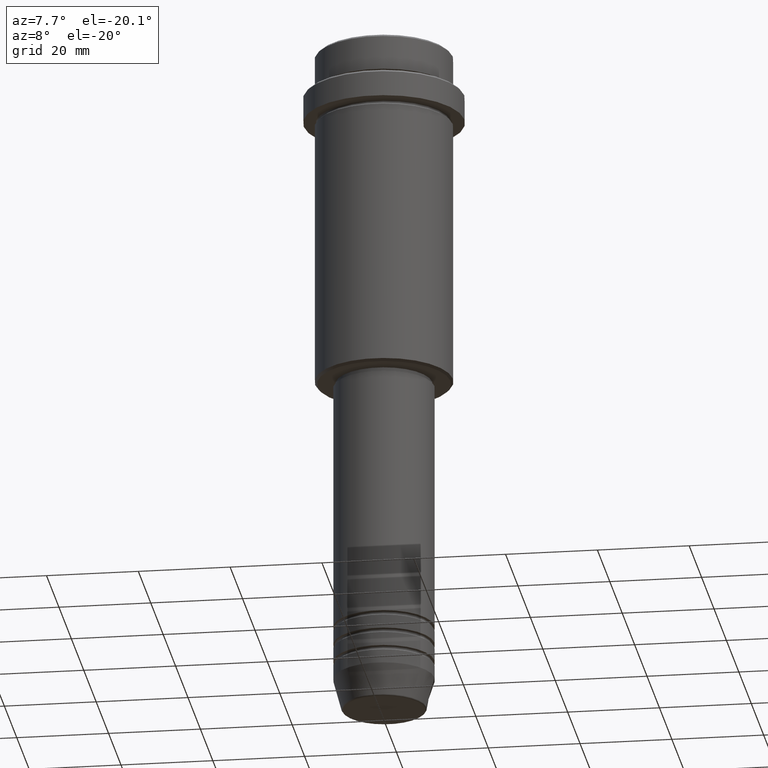
[diagram: clean part render]
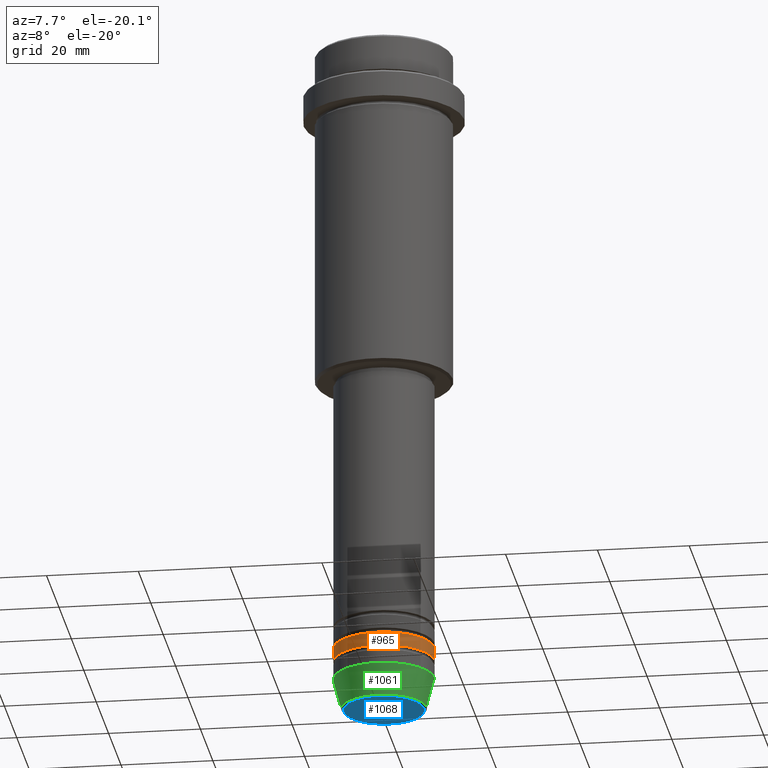
[diagram: same view with three faces highlighted in distinct colors, each labeled with its STEP entity id]
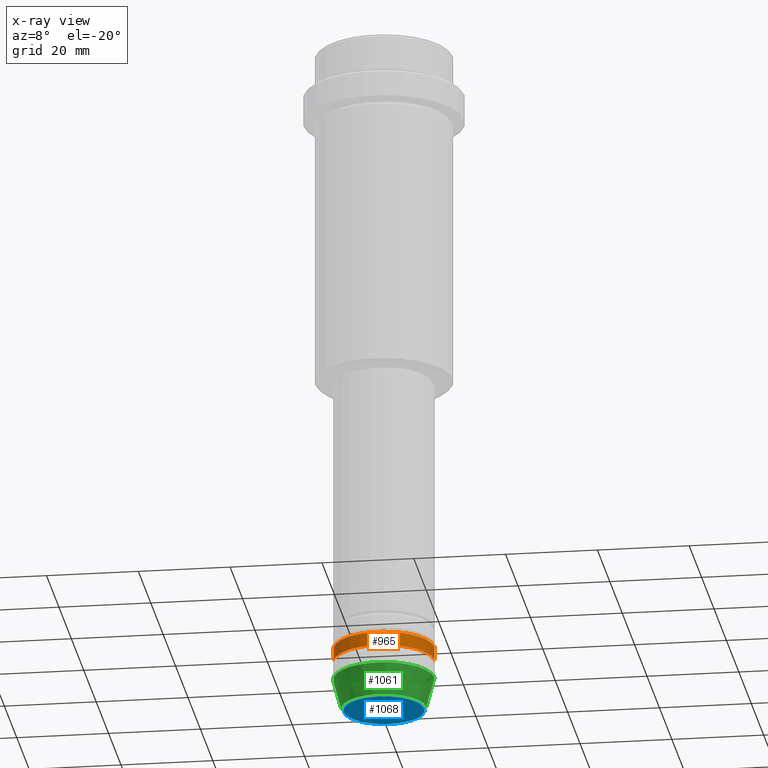
[diagram: x-ray of the same camera — body ghosted, the three highlighted faces saturated]
A machine part, auxiliary view with three faces highlighted in distinct colors.
The next image is the same camera in x-ray (body ghosted, the three faces saturated) — at least one of them is partly hidden behind the body in this view.
Their STEP definitions:

[orange] entity #965 — the highlighted cylindrical surface (partial cylindrical patch) has radius 11 mm, axis along (-0, -0, 1).
#19 = CYLINDRICAL_SURFACE ( 'NONE', #797, 11.00000000000000000 ) ;
#41 = DIRECTION ( 'NONE',  ( -0.000000000000000000, -0.000000000000000000, 1.000000000000000000 ) ) ;
#92 = VERTEX_POINT ( 'NONE', #424 ) ;
#156 = DIRECTION ( 'NONE',  ( -0.000000000000000000, -0.000000000000000000, 1.000000000000000000 ) ) ;
#170 = ORIENTED_EDGE ( 'NONE', *, *, #236, .T. ) ;
#195 = CARTESIAN_POINT ( 'NONE',  ( -11.00000000000000000, 1.347111479062088405E-15, 0.000000000000000000 ) ) ;
#236 = EDGE_CURVE ( 'NONE', #389, #657, #1000, .T. ) ;
#347 = EDGE_CURVE ( 'NONE', #92, #1059, #954, .T. ) ;
#359 = CARTESIAN_POINT ( 'NONE',  ( 0.000000000000000000, 0.000000000000000000, -138.9999999999999147 ) ) ;
#380 = ORIENTED_EDGE ( 'NONE', *, *, #347, .F. ) ;
#389 = VERTEX_POINT ( 'NONE', #841 ) ;
#424 = CARTESIAN_POINT ( 'NONE',  ( -11.00000000000000000, 1.347111479062088405E-15, -138.9999999999999147 ) ) ;
#456 = CARTESIAN_POINT ( 'NONE',  ( 0.000000000000000000, 0.000000000000000000, -135.9999999999998863 ) ) ;
#587 = VECTOR ( 'NONE', #41, 1000.000000000000000 ) ;
#657 = VERTEX_POINT ( 'NONE', #934 ) ;
#694 = DIRECTION ( 'NONE',  ( 1.000000000000000000, 0.000000000000000000, 0.000000000000000000 ) ) ;
#712 = EDGE_CURVE ( 'NONE', #1059, #657, #1288, .T. ) ;
#714 = ORIENTED_EDGE ( 'NONE', *, *, #712, .F. ) ;
#785 = CARTESIAN_POINT ( 'NONE',  ( -11.00000000000000000, 1.347111479062088405E-15, -135.9999999999998863 ) ) ;
#797 = AXIS2_PLACEMENT_3D ( 'NONE', #1004, #1110, #866 ) ;
#840 = VECTOR ( 'NONE', #1062, 1000.000000000000000 ) ;
#841 = CARTESIAN_POINT ( 'NONE',  ( 11.00000000000000000, 0.000000000000000000, -138.9999999999999147 ) ) ;
#866 = DIRECTION ( 'NONE',  ( 1.000000000000000000, 0.000000000000000000, 0.000000000000000000 ) ) ;
#933 = EDGE_LOOP ( 'NONE', ( #380, #1136, #170, #714 ) ) ;
#934 = CARTESIAN_POINT ( 'NONE',  ( 11.00000000000000000, 0.000000000000000000, -135.9999999999998863 ) ) ;
#954 = LINE ( 'NONE', #195, #840 ) ;
#965 = ADVANCED_FACE ( 'NONE', ( #1414 ), #19, .T. ) ;
#1000 = LINE ( 'NONE', #1231, #587 ) ;
#1004 = CARTESIAN_POINT ( 'NONE',  ( 0.000000000000000000, 0.000000000000000000, 0.000000000000000000 ) ) ;
#1059 = VERTEX_POINT ( 'NONE', #785 ) ;
#1062 = DIRECTION ( 'NONE',  ( -0.000000000000000000, -0.000000000000000000, 1.000000000000000000 ) ) ;
#1101 = CIRCLE ( 'NONE', #1335, 11.00000000000000000 ) ;
#1106 = EDGE_CURVE ( 'NONE', #92, #389, #1101, .T. ) ;
#1110 = DIRECTION ( 'NONE',  ( -0.000000000000000000, -0.000000000000000000, 1.000000000000000000 ) ) ;
#1136 = ORIENTED_EDGE ( 'NONE', *, *, #1106, .T. ) ;
#1148 = AXIS2_PLACEMENT_3D ( 'NONE', #456, #1345, #1236 ) ;
#1231 = CARTESIAN_POINT ( 'NONE',  ( 11.00000000000000000, 0.000000000000000000, 0.000000000000000000 ) ) ;
#1236 = DIRECTION ( 'NONE',  ( 1.000000000000000000, 0.000000000000000000, 0.000000000000000000 ) ) ;
#1288 = CIRCLE ( 'NONE', #1148, 11.00000000000000000 ) ;
#1335 = AXIS2_PLACEMENT_3D ( 'NONE', #359, #156, #694 ) ;
#1345 = DIRECTION ( 'NONE',  ( -0.000000000000000000, -0.000000000000000000, 1.000000000000000000 ) ) ;
#1414 = FACE_OUTER_BOUND ( 'NONE', #933, .T. ) ;

[blue] entity #1068 — the highlighted planar face has unit normal (0, -0, 1).
#51 = FACE_OUTER_BOUND ( 'NONE', #928, .T. ) ;
#133 = CARTESIAN_POINT ( 'NONE',  ( 8.740692158992656502, 0.000000000000000000, -150.0000000000000000 ) ) ;
#163 = AXIS2_PLACEMENT_3D ( 'NONE', #610, #1269, #278 ) ;
#217 = DIRECTION ( 'NONE',  ( 0.000000000000000000, 0.000000000000000000, -1.000000000000000000 ) ) ;
#278 = DIRECTION ( 'NONE',  ( 1.000000000000000000, 0.000000000000000000, 0.000000000000000000 ) ) ;
#341 = AXIS2_PLACEMENT_3D ( 'NONE', #1117, #217, #1088 ) ;
#366 = CIRCLE ( 'NONE', #341, 8.740692158992656502 ) ;
#404 = ORIENTED_EDGE ( 'NONE', *, *, #443, .T. ) ;
#443 = EDGE_CURVE ( 'NONE', #985, #893, #960, .T. ) ;
#481 = AXIS2_PLACEMENT_3D ( 'NONE', #927, #895, #923 ) ;
#511 = ORIENTED_EDGE ( 'NONE', *, *, #1014, .T. ) ;
#599 = PLANE ( 'NONE',  #481 ) ;
#610 = CARTESIAN_POINT ( 'NONE',  ( 0.000000000000000000, 0.000000000000000000, -150.0000000000000000 ) ) ;
#893 = VERTEX_POINT ( 'NONE', #133 ) ;
#895 = DIRECTION ( 'NONE',  ( 0.000000000000000000, -0.000000000000000000, 1.000000000000000000 ) ) ;
#923 = DIRECTION ( 'NONE',  ( 1.000000000000000000, 0.000000000000000000, 0.000000000000000000 ) ) ;
#927 = CARTESIAN_POINT ( 'NONE',  ( 0.000000000000000000, 0.000000000000000000, -150.0000000000000000 ) ) ;
#928 = EDGE_LOOP ( 'NONE', ( #511, #404 ) ) ;
#960 = CIRCLE ( 'NONE', #163, 8.740692158992656502 ) ;
#985 = VERTEX_POINT ( 'NONE', #1209 ) ;
#1014 = EDGE_CURVE ( 'NONE', #893, #985, #366, .T. ) ;
#1068 = ADVANCED_FACE ( 'NONE', ( #51 ), #599, .F. ) ;
#1088 = DIRECTION ( 'NONE',  ( 1.000000000000000000, 0.000000000000000000, 0.000000000000000000 ) ) ;
#1117 = CARTESIAN_POINT ( 'NONE',  ( 0.000000000000000000, 0.000000000000000000, -150.0000000000000000 ) ) ;
#1209 = CARTESIAN_POINT ( 'NONE',  ( -8.740692158992656502, 1.099999016768739653E-15, -150.0000000000000000 ) ) ;
#1269 = DIRECTION ( 'NONE',  ( 0.000000000000000000, 0.000000000000000000, -1.000000000000000000 ) ) ;

[green] entity #1061 — the highlighted conical surface has half-angle 15 deg.
#23 = CIRCLE ( 'NONE', #48, 9.223655072137189492 ) ;
#27 = VERTEX_POINT ( 'NONE', #1057 ) ;
#48 = AXIS2_PLACEMENT_3D ( 'NONE', #258, #692, #137 ) ;
#59 = DIRECTION ( 'NONE',  ( -0.000000000000000000, -0.000000000000000000, 1.000000000000000000 ) ) ;
#76 = EDGE_CURVE ( 'NONE', #723, #858, #532, .T. ) ;
#103 = ORIENTED_EDGE ( 'NONE', *, *, #221, .F. ) ;
#137 = DIRECTION ( 'NONE',  ( 1.000000000000000000, 0.000000000000000000, 0.000000000000000000 ) ) ;
#165 = CONICAL_SURFACE ( 'NONE', #1174, 11.00000000000000000, 0.2617993877991500740 ) ;
#171 = DIRECTION ( 'NONE',  ( 1.000000000000000000, 0.000000000000000000, 0.000000000000000000 ) ) ;
#221 = EDGE_CURVE ( 'NONE', #1285, #858, #680, .T. ) ;
#224 = CARTESIAN_POINT ( 'NONE',  ( 11.00000000000000000, 0.000000000000000000, -143.0000000000000000 ) ) ;
#238 = ORIENTED_EDGE ( 'NONE', *, *, #283, .T. ) ;
#258 = CARTESIAN_POINT ( 'NONE',  ( 0.000000000000000000, 0.000000000000000000, -149.6294095225512422 ) ) ;
#283 = EDGE_CURVE ( 'NONE', #27, #723, #23, .T. ) ;
#308 = CARTESIAN_POINT ( 'NONE',  ( -11.00000000000000000, 1.347111479062088405E-15, -143.0000000000000000 ) ) ;
#367 = CARTESIAN_POINT ( 'NONE',  ( 0.000000000000000000, 0.000000000000000000, -143.0000000000000000 ) ) ;
#427 = CARTESIAN_POINT ( 'NONE',  ( 11.00000000000000000, 0.000000000000000000, -143.0000000000000000 ) ) ;
#454 = AXIS2_PLACEMENT_3D ( 'NONE', #367, #1034, #892 ) ;
#532 = LINE ( 'NONE', #224, #1095 ) ;
#593 = CARTESIAN_POINT ( 'NONE',  ( 0.000000000000000000, 0.000000000000000000, -143.0000000000000000 ) ) ;
#615 = VECTOR ( 'NONE', #1397, 1000.000000000000000 ) ;
#671 = ORIENTED_EDGE ( 'NONE', *, *, #76, .T. ) ;
#680 = CIRCLE ( 'NONE', #454, 11.00000000000000000 ) ;
#692 = DIRECTION ( 'NONE',  ( -0.000000000000000000, -0.000000000000000000, 1.000000000000000000 ) ) ;
#723 = VERTEX_POINT ( 'NONE', #782 ) ;
#782 = CARTESIAN_POINT ( 'NONE',  ( 9.223655072137189492, 0.000000000000000000, -149.6294095225512422 ) ) ;
#788 = EDGE_CURVE ( 'NONE', #27, #1285, #1067, .T. ) ;
#853 = CARTESIAN_POINT ( 'NONE',  ( -11.00000000000000000, 1.347111479062088405E-15, -143.0000000000000000 ) ) ;
#858 = VERTEX_POINT ( 'NONE', #427 ) ;
#892 = DIRECTION ( 'NONE',  ( 1.000000000000000000, 0.000000000000000000, 0.000000000000000000 ) ) ;
#914 = ORIENTED_EDGE ( 'NONE', *, *, #788, .F. ) ;
#966 = EDGE_LOOP ( 'NONE', ( #914, #238, #671, #103 ) ) ;
#992 = DIRECTION ( 'NONE',  ( 0.2588190451025213501, 0.000000000000000000, 0.9659258262890680902 ) ) ;
#1034 = DIRECTION ( 'NONE',  ( -0.000000000000000000, -0.000000000000000000, 1.000000000000000000 ) ) ;
#1057 = CARTESIAN_POINT ( 'NONE',  ( -9.223655072137189492, 1.238341722557647202E-15, -149.6294095225512422 ) ) ;
#1061 = ADVANCED_FACE ( 'NONE', ( #1154 ), #165, .T. ) ;
#1067 = LINE ( 'NONE', #853, #615 ) ;
#1095 = VECTOR ( 'NONE', #992, 1000.000000000000000 ) ;
#1154 = FACE_OUTER_BOUND ( 'NONE', #966, .T. ) ;
#1174 = AXIS2_PLACEMENT_3D ( 'NONE', #593, #59, #171 ) ;
#1285 = VERTEX_POINT ( 'NONE', #308 ) ;
#1397 = DIRECTION ( 'NONE',  ( -0.2588190451025213501, 3.169619151431772337E-17, 0.9659258262890680902 ) ) ;